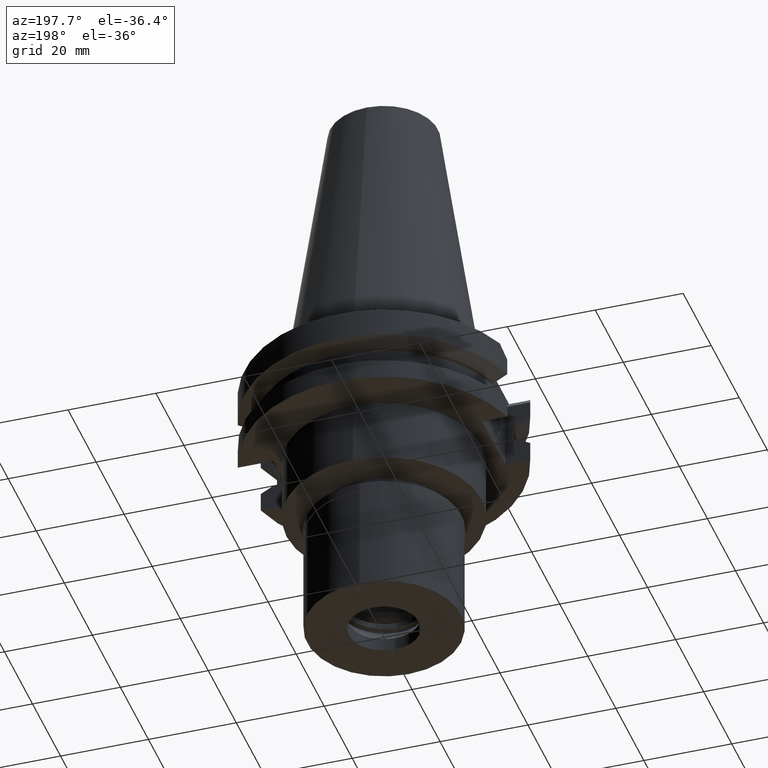
[diagram: clean part render]
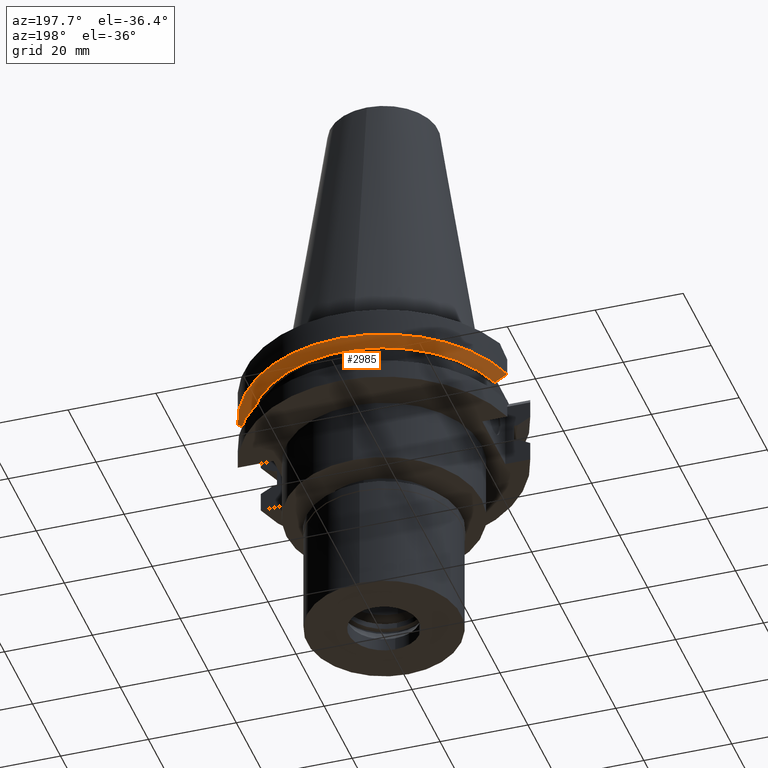
[diagram: same view with one face highlighted and labeled with its STEP entity id]
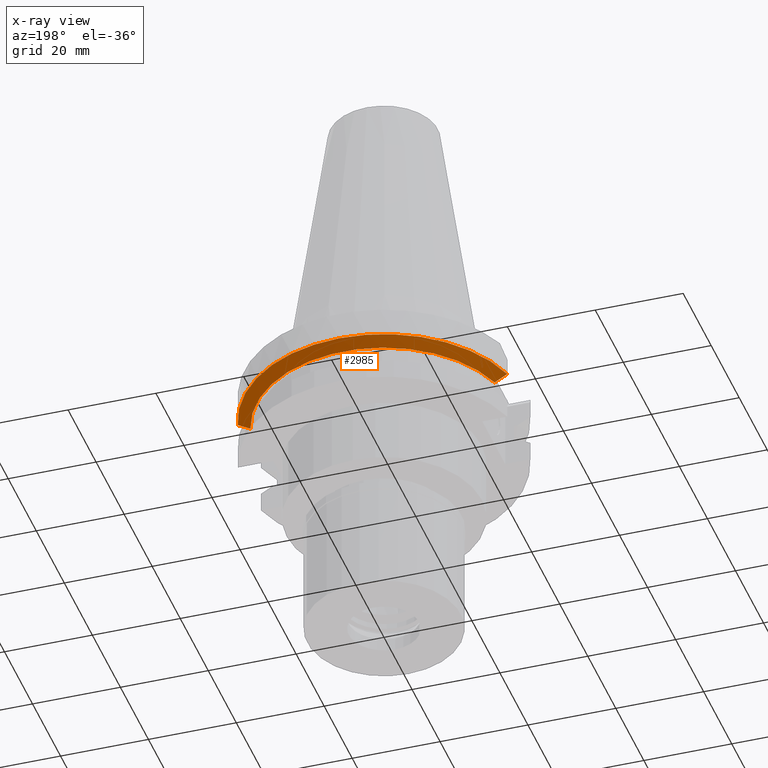
[diagram: x-ray of the same camera — body ghosted, the highlighted face saturated]
A machine part, auxiliary view. The second image highlights one B-rep face of the part: STEP entity #2985.
The next image is the same camera in x-ray: the body ghosted, the highlighted face saturated — about 0% of this face is hidden behind the body in this view.
In plain terms, the highlighted conical surface has half-angle 60 deg.
Its self-contained STEP definition (entity closure, byte-faithful):
#68 = CARTESIAN_POINT ( 'NONE',  ( -27.78617712593000277, 8.189999354991000402, -9.207500000000999663 ) ) ;
#100 = ORIENTED_EDGE ( 'NONE', *, *, #955, .F. ) ;
#111 = DIRECTION ( 'NONE',  ( 0.0000000000000000000, 0.0000000000000000000, 1.000000000000000000 ) ) ;
#196 = CARTESIAN_POINT ( 'NONE',  ( -27.78617712593000277, 8.189999354991000402, -9.207500000000999663 ) ) ;
#353 = CONICAL_SURFACE ( 'NONE', #762, 30.35901877526999826, 1.047197551196400456 ) ;
#419 = CARTESIAN_POINT ( 'NONE',  ( -30.67550166027999836, 8.189999871196000925, -7.601334381923999572 ) ) ;
#496 = CARTESIAN_POINT ( 'NONE',  ( 30.67550146334999894, 8.190000608794999692, -7.601327790633999548 ) ) ;
#540 = CARTESIAN_POINT ( 'NONE',  ( -30.67550166027999836, 8.189999871196000925, -7.601334381923999572 ) ) ;
#566 = CARTESIAN_POINT ( 'NONE',  ( 0.0000000000000000000, 0.0000000000000000000, -9.207500000002999840 ) ) ;
#698 = ORIENTED_EDGE ( 'NONE', *, *, #2980, .T. ) ;
#762 = AXIS2_PLACEMENT_3D ( 'NONE', #1560, #111, #2490 ) ;
#782 = CARTESIAN_POINT ( 'NONE',  ( 30.34642898503000197, 8.190000608794999692, -7.784888138228999388 ) ) ;
#908 = CARTESIAN_POINT ( 'NONE',  ( -28.73056052340999855, 8.190000283830000782, -8.684028978076000271 ) ) ;
#918 = CIRCLE ( 'NONE', #1317, 28.96803755052999918 ) ;
#936 = B_SPLINE_CURVE_WITH_KNOTS ( 'NONE', 3,
 ( #1287, #2198, #2694, #2998, #782, #2246 ),
 .UNSPECIFIED., .F., .F.,
 ( 4, 1, 1, 4 ),
 ( 0.0000000000000000000, 0.3333333333333000081, 0.6666666666667000474, 1.000000000000000000 ),
 .UNSPECIFIED. ) ;
#955 = EDGE_CURVE ( 'NONE', #1007, #2920, #2361, .T. ) ;
#962 = CARTESIAN_POINT ( 'NONE',  ( 0.0000000000000000000, 0.0000000000000000000, -7.601333230925999551 ) ) ;
#1007 = VERTEX_POINT ( 'NONE', #496 ) ;
#1184 = DIRECTION ( 'NONE',  ( 0.0000000000000000000, 0.0000000000000000000, 1.000000000000000000 ) ) ;
#1287 = CARTESIAN_POINT ( 'NONE',  ( 27.78616460793999821, 8.190000186309999819, -9.207500000000999663 ) ) ;
#1317 = AXIS2_PLACEMENT_3D ( 'NONE', #566, #2957, #2232 ) ;
#1428 = CARTESIAN_POINT ( 'NONE',  ( -30.34643496572000032, 8.189999871196000925, -7.784891506808000017 ) ) ;
#1460 = ORIENTED_EDGE ( 'NONE', *, *, #2218, .F. ) ;
#1560 = CARTESIAN_POINT ( 'NONE',  ( 0.0000000000000000000, 0.0000000000000000000, -8.404416615464000984 ) ) ;
#1804 = AXIS2_PLACEMENT_3D ( 'NONE', #962, #1184, #2887 ) ;
#1892 = CARTESIAN_POINT ( 'NONE',  ( -28.09918438189000156, 8.189999354991000402, -9.034158176830999309 ) ) ;
#1913 = VERTEX_POINT ( 'NONE', #1983 ) ;
#1983 = CARTESIAN_POINT ( 'NONE',  ( 27.78616460793999821, 8.190000186309999819, -9.207500000000999663 ) ) ;
#2109 = CARTESIAN_POINT ( 'NONE',  ( -29.69365969333999900, 8.189999974106999758, -8.148623101324998785 ) ) ;
#2198 = CARTESIAN_POINT ( 'NONE',  ( 28.09918438473999913, 8.190000186309999819, -9.034151247445999289 ) ) ;
#2218 = EDGE_CURVE ( 'NONE', #2920, #2885, #2720, .T. ) ;
#2232 = DIRECTION ( 'NONE',  ( 0.0000000000000000000, 1.000000000000000000, 0.0000000000000000000 ) ) ;
#2246 = CARTESIAN_POINT ( 'NONE',  ( 30.67550146334999894, 8.190000608794999692, -7.601327790633999548 ) ) ;
#2266 = FACE_OUTER_BOUND ( 'NONE', #2437, .T. ) ;
#2361 = CIRCLE ( 'NONE', #1804, 31.74999999999998579 ) ;
#2437 = EDGE_LOOP ( 'NONE', ( #2576, #698, #1460, #100 ) ) ;
#2490 = DIRECTION ( 'NONE',  ( 0.0000000000000000000, 1.000000000000000000, 0.0000000000000000000 ) ) ;
#2576 = ORIENTED_EDGE ( 'NONE', *, *, #2840, .F. ) ;
#2694 = CARTESIAN_POINT ( 'NONE',  ( 28.73055575237000170, 8.189999994227999736, -8.684034463310000618 ) ) ;
#2720 = B_SPLINE_CURVE_WITH_KNOTS ( 'NONE', 3,
 ( #419, #1428, #2109, #908, #1892, #196 ),
 .UNSPECIFIED., .F., .F.,
 ( 4, 1, 1, 4 ),
 ( 0.0000000000000000000, 0.3333333333333000081, 0.6666666666667000474, 1.000000000000000000 ),
 .UNSPECIFIED. ) ;
#2840 = EDGE_CURVE ( 'NONE', #1913, #1007, #936, .T. ) ;
#2885 = VERTEX_POINT ( 'NONE', #68 ) ;
#2887 = DIRECTION ( 'NONE',  ( 0.9661575315241073270, 0.2579527559055020958, 0.0000000000000000000 ) ) ;
#2920 = VERTEX_POINT ( 'NONE', #540 ) ;
#2957 = DIRECTION ( 'NONE',  ( 0.0000000000000000000, 0.0000000000000000000, 1.000000000000000000 ) ) ;
#2980 = EDGE_CURVE ( 'NONE', #1913, #2885, #918, .T. ) ;
#2985 = ADVANCED_FACE ( 'NONE', ( #2266 ), #353, .T. ) ;
#2998 = CARTESIAN_POINT ( 'NONE',  ( 29.69365848594999946, 8.189999740737000877, -8.148626460406001470 ) ) ;